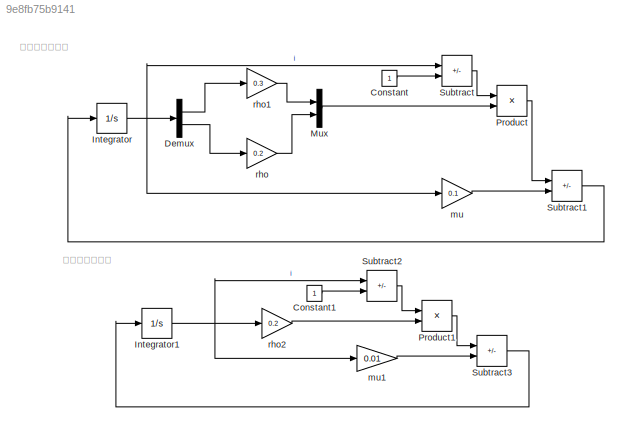
MODEL slx_9e8fb75b9141
KIND model
CONFIG AbsTol = auto
CONFIG EnableMultiTasking = off
CONFIG FixedStep = auto
CONFIG MaxStep = auto
CONFIG MinStep = auto
CONFIG RelTol = 1e-3
CONFIG SampleTimeConstraint = Unconstrained
CONFIG SolverName = VariableStepAuto
CONFIG StartTime = 0.0
CONFIG StopTime = 200
BLOCK [Constant] Constant
BLOCK [Constant] Constant1
BLOCK [Demux] Demux
  Outputs = 2
  Ports = [1, 2]
BLOCK [Integrator] Integrator
  InitialCondition = [0.0001 0.0001]
  Ports = [1, 1]
BLOCK [Integrator] Integrator1
  InitialCondition = 0.0001
  Ports = [1, 1]
BLOCK [Mux] Mux
  DisplayOption = bar
  Inputs = 2
  Ports = [2, 1]
BLOCK [Product] Product
  Ports = [2, 1]
BLOCK [Product] Product1
  Ports = [2, 1]
BLOCK [Sum] Subtract
  IconShape = rectangular
  Inputs = -+
  Ports = [2, 1]
BLOCK [Sum] Subtract1
  IconShape = rectangular
  Inputs = +-
  Ports = [2, 1]
BLOCK [Sum] Subtract2
  IconShape = rectangular
  Inputs = -+
  Ports = [2, 1]
BLOCK [Sum] Subtract3
  IconShape = rectangular
  Inputs = +-
  Ports = [2, 1]
BLOCK [Gain] mu
  Gain = 0.1
BLOCK [Gain] mu1
  Gain = 0.01
BLOCK [Gain] rho
  Gain = 0.2
BLOCK [Gain] rho1
  Gain = 0.3
BLOCK [Gain] rho2
  Gain = 0.2
ANNOTATION (root): 不同感染率对比
ANNOTATION (root): 不同治愈率对比
LINE Constant1:1 -> Subtract2:2
LINE Constant:1 -> Subtract:2
LINE Demux:1 -> rho1:1
LINE Demux:2 -> rho:1
NET Integrator1:1 -> Subtract2:1, mu1:1, rho2:1
NET Integrator:1 -> Demux:1, Subtract:1, mu:1
LINE Mux:1 -> Product:2
LINE Product1:1 -> Subtract3:1
LINE Product:1 -> Subtract1:1
LINE Subtract1:1 -> Integrator:1
LINE Subtract2:1 -> Product1:1
LINE Subtract3:1 -> Integrator1:1
LINE Subtract:1 -> Product:1
LINE mu1:1 -> Subtract3:2
LINE mu:1 -> Subtract1:2
LINE rho1:1 -> Mux:1
LINE rho2:1 -> Product1:2
LINE rho:1 -> Mux:2
note: NET lines group one-source signal fan-out (src -> all destinations, sorted); 1:1 wires keep LINE
